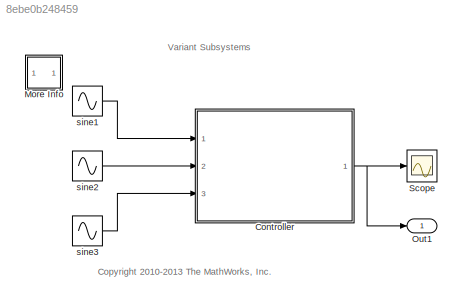
MODEL slx_8ebe0b248459
KIND model
CONFIG AbsTol = auto
CONFIG EnableMultiTasking = on
CONFIG FixedStep = 0.010000
CONFIG MaxStep = auto
CONFIG MinStep = auto
CONFIG PreLoadFcn = VSS_LINEAR_CONTROLLER=Simulink.Variant('VSS_MODE==1')\nVSS_NONLINEAR_CONTROLLER=Simulink.Variant('VSS_MODE==2')\n\nVSS_MODE=2
CONFIG RelTol = 1e-3
CONFIG SampleTimeConstraint = Unconstrained
CONFIG Solver = FixedStepDiscrete
CONFIG SolverName = FixedStepDiscrete
CONFIG StartTime = 0.0
CONFIG StopTime = 10.0
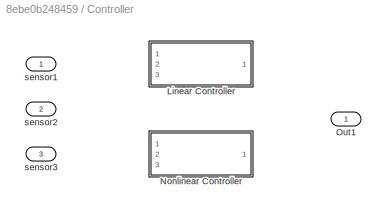
BLOCK [SubSystem] Controller
  Ports = [3, 1]
  RequestExecContextInheritance = off
  Variant = on
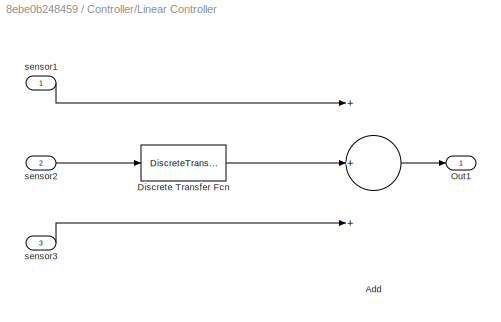
BLOCK [SubSystem] Controller/Linear Controller
  Ports = [3, 1]
  RequestExecContextInheritance = off
  Variant = off
  VariantControl = VSS_LINEAR_CONTROLLER
BLOCK [Sum] Controller/Linear Controller/Add
  InputSameDT = off
  Inputs = +++
  OutDataTypeStr = Inherit: Inherit via internal rule
  Ports = [3, 1]
  SaturateOnIntegerOverflow = off
BLOCK [DiscreteTransferFcn] Controller/Linear Controller/Discrete Transfer Fcn
  Denominator = [1 .09 0.5]
  InputPortMap = u0
  Numerator = [1 .7]
  Ports = [1, 1]
  SampleTime = .01
BLOCK [Outport] Controller/Linear Controller/Out1
  IconDisplay = Port number
BLOCK [Inport] Controller/Linear Controller/sensor1
  IconDisplay = Port number
BLOCK [Inport] Controller/Linear Controller/sensor2
  IconDisplay = Port number
  Port = 2
BLOCK [Inport] Controller/Linear Controller/sensor3
  IconDisplay = Port number
  Port = 3
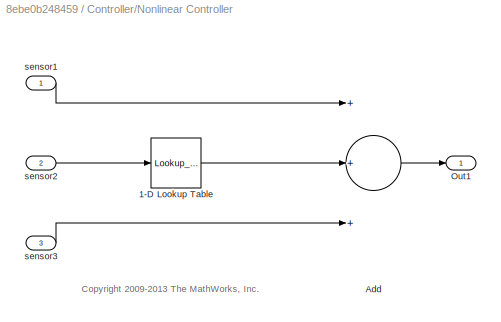
BLOCK [SubSystem] Controller/Nonlinear Controller
  Ports = [3, 1]
  RequestExecContextInheritance = off
  Variant = off
  VariantControl = VSS_NONLINEAR_CONTROLLER
BLOCK [Lookup_n-D] Controller/Nonlinear Controller/1-D Lookup Table
  BreakpointsForDimension1 = [-5:5]
  NumberOfTableDimensions = 1
  Ports = [1, 1]
  Table = tanh([-5:5])
BLOCK [Sum] Controller/Nonlinear Controller/Add
  InputSameDT = off
  Inputs = +++
  OutDataTypeStr = Inherit: Inherit via internal rule
  Ports = [3, 1]
  SampleTime = .01
  SaturateOnIntegerOverflow = off
BLOCK [Outport] Controller/Nonlinear Controller/Out1
  IconDisplay = Port number
BLOCK [Inport] Controller/Nonlinear Controller/sensor1
  IconDisplay = Port number
BLOCK [Inport] Controller/Nonlinear Controller/sensor2
  IconDisplay = Port number
  Port = 2
BLOCK [Inport] Controller/Nonlinear Controller/sensor3
  IconDisplay = Port number
  Port = 3
BLOCK [Outport] Controller/Out1
  IconDisplay = Port number
BLOCK [Inport] Controller/sensor1
  IconDisplay = Port number
BLOCK [Inport] Controller/sensor2
  IconDisplay = Port number
  Port = 2
BLOCK [Inport] Controller/sensor3
  IconDisplay = Port number
  Port = 3
BLOCK [SubSystem] More Info
  OpenFcn = showdemo(bdroot(gcb))
  Ports = []
  RequestExecContextInheritance = off
  Variant = off
BLOCK [Outport] Out1
  IconDisplay = Port number
BLOCK [Scope] Scope
  NumInputPorts = 1
  Ports = [1]
  ScopeSpecificationString = Simulink.scopes.TimeScopeBlockCfg('CurrentConfiguration', extmgr.ConfigurationSet(extmgr.Configuration('Core','General UI',true),extmgr.Configuration('Core','Source UI',true),extmgr.Configuration('Sources','WiredSimulink',true,'DataLoggingSaveFormat','StructureWithTime','DataLoggingLimitDataPoints',true,'DataLoggingDecimation','1','DataLoggingDecimateData',true),extmgr.Configuration('Visuals','Tim...<+1643ch>
BLOCK [Sin] sine1
  Amplitude = .1
  Frequency = pi/3
  Ports = [0, 1]
  SampleTime = .01
BLOCK [Sin] sine2
  Amplitude = 2
  Ports = [0, 1]
  SampleTime = .01
BLOCK [Sin] sine3
  Amplitude = .3
  Frequency = pi/6
  Ports = [0, 1]
  SampleTime = .01
ANNOTATION (root): <copyright redacted>
ANNOTATION (root): Variant Subsystems
ANNOTATION Controller/Nonlinear Controller: <copyright redacted>
ANNOTATION More Info: This model illustrates Simulink variant subsystems. Variant subsystems let you provide multiple implementations for a subsystem where only one implementation is active during simulation. You can programmatically swap out the active implementation and replace it with one of the other implementations without modifying the model.
ANNOTATION More Info: Variant Subsystems
LINE Controller/Linear Controller/Add:1 -> Controller/Linear Controller/Out1:1
LINE Controller/Linear Controller/Discrete Transfer Fcn:1 -> Controller/Linear Controller/Add:2
LINE Controller/Linear Controller/sensor1:1 -> Controller/Linear Controller/Add:1
LINE Controller/Linear Controller/sensor2:1 -> Controller/Linear Controller/Discrete Transfer Fcn:1
LINE Controller/Linear Controller/sensor3:1 -> Controller/Linear Controller/Add:3
LINE Controller/Nonlinear Controller/1-D Lookup Table:1 -> Controller/Nonlinear Controller/Add:2
LINE Controller/Nonlinear Controller/Add:1 -> Controller/Nonlinear Controller/Out1:1
LINE Controller/Nonlinear Controller/sensor1:1 -> Controller/Nonlinear Controller/Add:1
LINE Controller/Nonlinear Controller/sensor2:1 -> Controller/Nonlinear Controller/1-D Lookup Table:1
LINE Controller/Nonlinear Controller/sensor3:1 -> Controller/Nonlinear Controller/Add:3
NET Controller:1 -> Out1:1, Scope:1
LINE sine1:1 -> Controller:1
LINE sine2:1 -> Controller:2
LINE sine3:1 -> Controller:3
note: NET lines group one-source signal fan-out (src -> all destinations, sorted); 1:1 wires keep LINE
